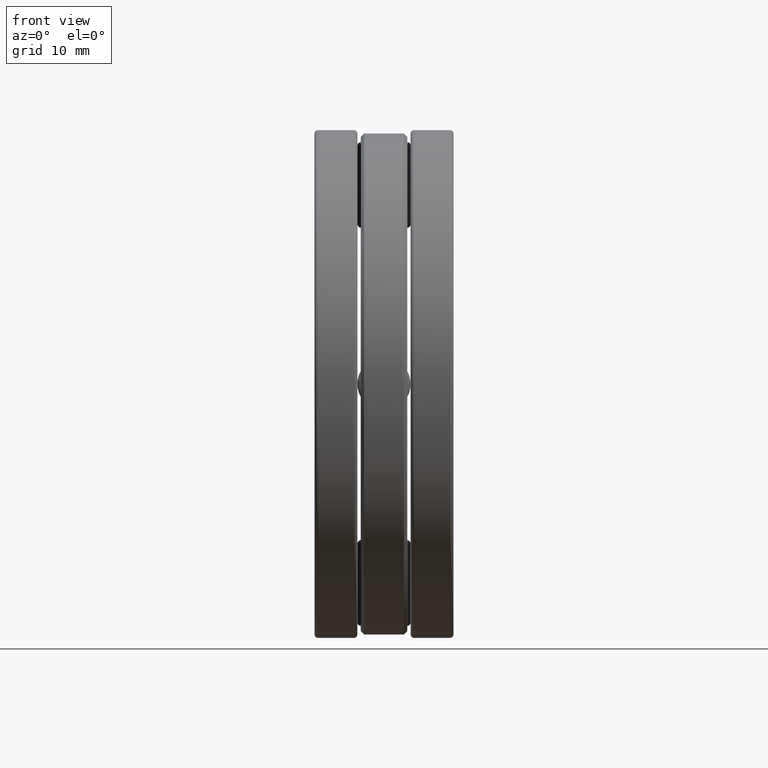
[diagram: clean part render]
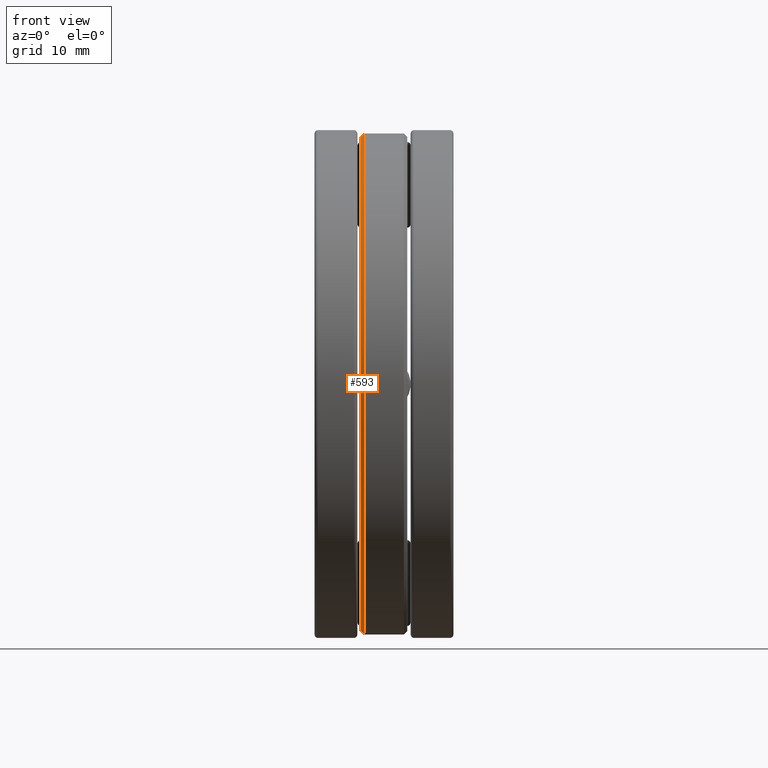
[diagram: same view with one face highlighted and labeled with its STEP entity id]
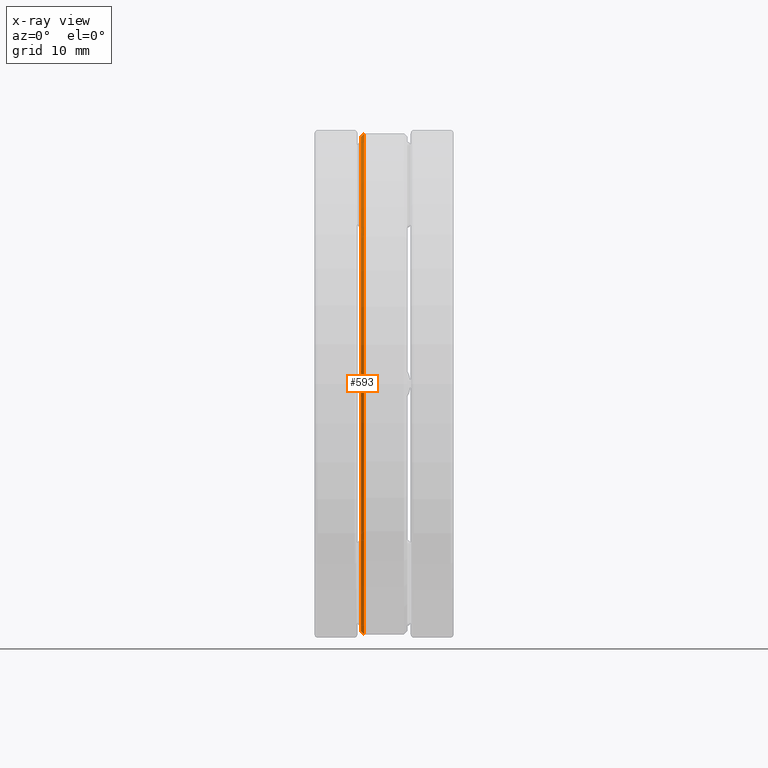
[diagram: x-ray of the same camera — body ghosted, the highlighted face saturated]
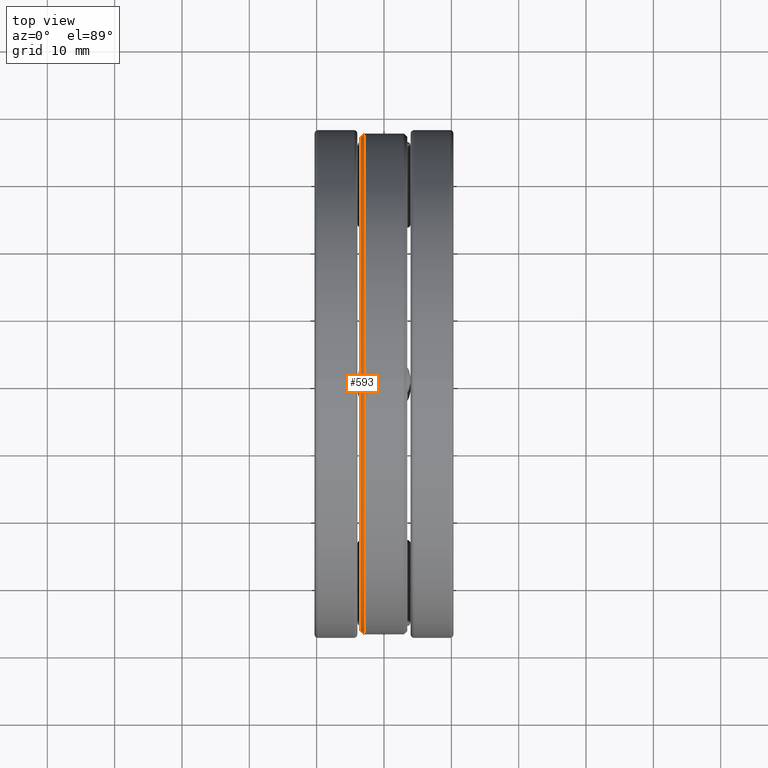
[diagram: same view with one face highlighted and labeled with its STEP entity id]
A machine part, front view. The second image highlights one B-rep face of the part: STEP entity #593.
The next image is the same camera in x-ray: the body ghosted, the highlighted face saturated — about 0% of this face is hidden behind the body in this view.
A second angle (top view) of the same face is appended — the face is thin or edge-on in the first view.
In plain terms, the highlighted conical surface has half-angle 45 deg.
Its self-contained STEP definition (entity closure, byte-faithful):
#7 = FACE_BOUND ( 'NONE', #45, .T. ) ;
#16 = EDGE_CURVE ( 'NONE', #1356, #1356, #684, .T. ) ;
#45 = EDGE_LOOP ( 'NONE', ( #1296 ) ) ;
#112 = CARTESIAN_POINT ( 'NONE',  ( -0.1360000000000000100, 0.0000000000000000000, 0.0000000000000000000 ) ) ;
#179 = DIRECTION ( 'NONE',  ( -1.000000000000000000, -0.0000000000000000000, -0.0000000000000000000 ) ) ;
#220 = DIRECTION ( 'NONE',  ( 1.000000000000000000, 0.0000000000000000000, 0.0000000000000000000 ) ) ;
#239 = DIRECTION ( 'NONE',  ( 0.0000000000000000000, 0.0000000000000000000, 1.000000000000000000 ) ) ;
#249 = DIRECTION ( 'NONE',  ( -1.000000000000000000, -0.0000000000000000000, -0.0000000000000000000 ) ) ;
#391 = CARTESIAN_POINT ( 'NONE',  ( -0.1160000000000000300, 0.0000000000000000000, 0.0000000000000000000 ) ) ;
#428 = AXIS2_PLACEMENT_3D ( 'NONE', #391, #179, #750 ) ;
#445 = FACE_OUTER_BOUND ( 'NONE', #721, .T. ) ;
#526 = CONICAL_SURFACE ( 'NONE', #1189, 1.444374999999999700, 0.7853981633974503900 ) ;
#593 = ADVANCED_FACE ( 'NONE', ( #445, #7 ), #526, .T. ) ;
#684 = CIRCLE ( 'NONE', #1014, 1.444374999999999700 ) ;
#687 = VERTEX_POINT ( 'NONE', #1109 ) ;
#721 = EDGE_LOOP ( 'NONE', ( #1154 ) ) ;
#735 = DIRECTION ( 'NONE',  ( 0.0000000000000000000, 0.0000000000000000000, -1.000000000000000000 ) ) ;
#750 = DIRECTION ( 'NONE',  ( 0.0000000000000000000, 0.0000000000000000000, 1.000000000000000000 ) ) ;
#1014 = AXIS2_PLACEMENT_3D ( 'NONE', #1385, #249, #239 ) ;
#1032 = CIRCLE ( 'NONE', #428, 1.464374999999999800 ) ;
#1109 = CARTESIAN_POINT ( 'NONE',  ( -0.1160000000000000300, 0.0000000000000000000, 1.464374999999999800 ) ) ;
#1154 = ORIENTED_EDGE ( 'NONE', *, *, #1343, .T. ) ;
#1166 = CARTESIAN_POINT ( 'NONE',  ( -0.1360000000000000100, 0.0000000000000000000, 1.444374999999999700 ) ) ;
#1189 = AXIS2_PLACEMENT_3D ( 'NONE', #112, #220, #735 ) ;
#1296 = ORIENTED_EDGE ( 'NONE', *, *, #16, .F. ) ;
#1343 = EDGE_CURVE ( 'NONE', #687, #687, #1032, .T. ) ;
#1356 = VERTEX_POINT ( 'NONE', #1166 ) ;
#1385 = CARTESIAN_POINT ( 'NONE',  ( -0.1360000000000000100, 0.0000000000000000000, 0.0000000000000000000 ) ) ;